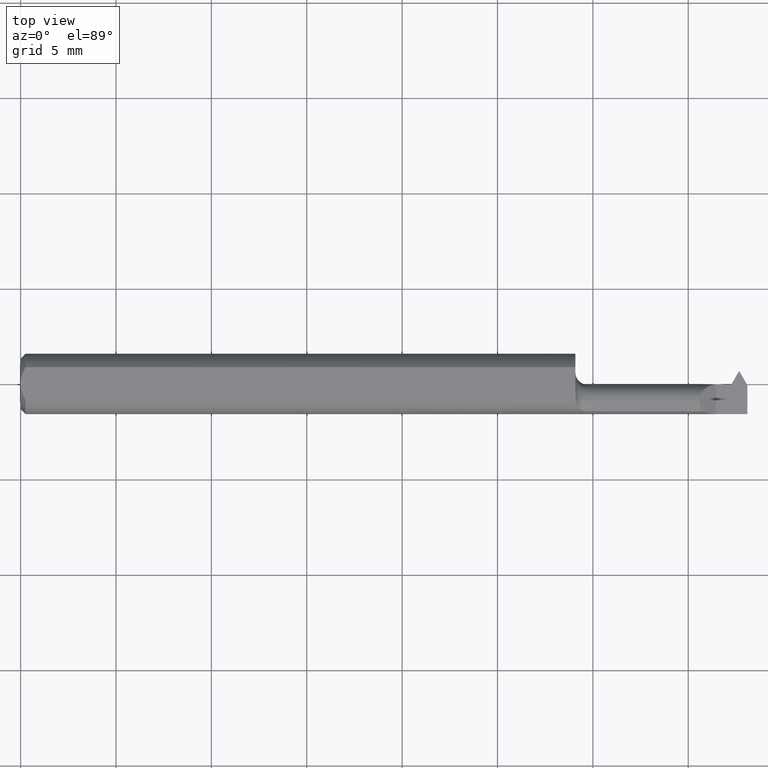
[diagram: clean part render]
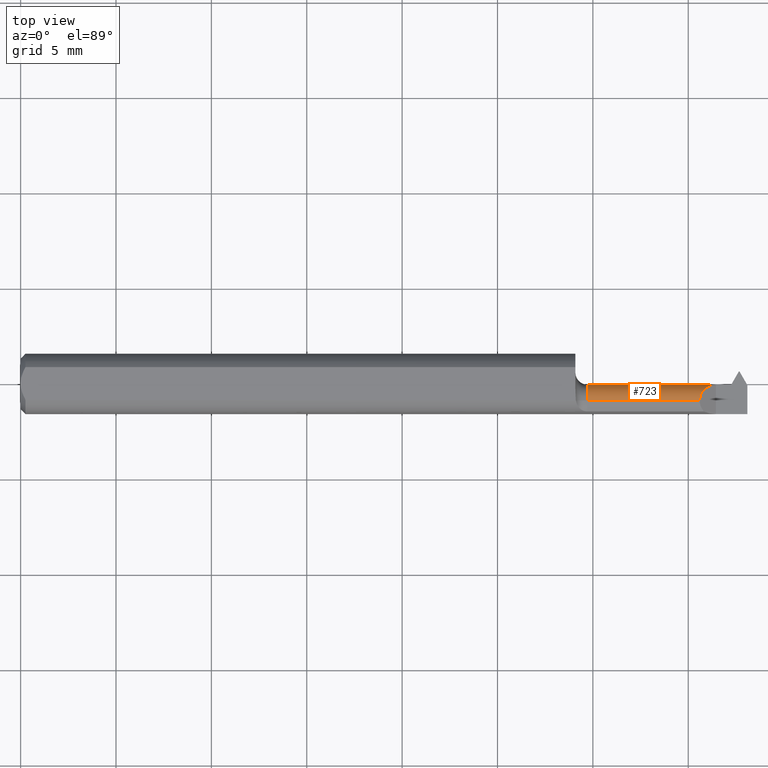
[diagram: same view with one face highlighted and labeled with its STEP entity id]
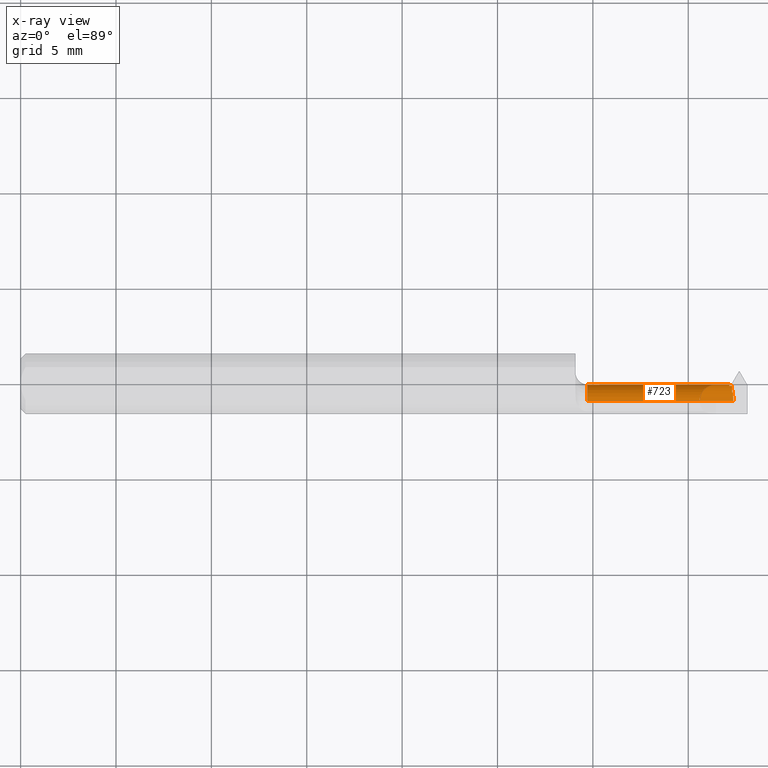
[diagram: x-ray of the same camera — body ghosted, the highlighted face saturated]
A machine part, top view. The second image highlights one B-rep face of the part: STEP entity #723.
The next image is the same camera in x-ray: the body ghosted, the highlighted face saturated — about 0% of this face is hidden behind the body in this view.
In plain terms, the highlighted cylindrical surface (edge-blend (fillet) strip) has radius 0.8509 mm, axis along (-1, -0, -0).
Its self-contained STEP definition (entity closure, byte-faithful):
#3 = AXIS2_PLACEMENT_3D ( 'NONE', #817, #128, #675 ) ;
#10 = CARTESIAN_POINT ( 'NONE',  ( 1.170000000000000151, -0.03485000000000003373, -0.03349999999999998812 ) ) ;
#61 = CARTESIAN_POINT ( 'NONE',  ( 1.464661542731879873, -0.001349999999999978604, 0.000000000000000000 ) ) ;
#78 = ORIENTED_EDGE ( 'NONE', *, *, #904, .T. ) ;
#80 = CARTESIAN_POINT ( 'NONE',  ( 1.469375214730118451, -0.01074846833720541524, -0.02326727683909952243 ) ) ;
#82 = CARTESIAN_POINT ( 'NONE',  ( 1.145000000000000240, -0.001350000000000033031, 4.347496136973102887E-17 ) ) ;
#87 = VERTEX_POINT ( 'NONE', #80 ) ;
#103 = CARTESIAN_POINT ( 'NONE',  ( 1.170000000000000151, -0.03485000000000003373, 0.03349999999999998812 ) ) ;
#111 = EDGE_CURVE ( 'NONE', #495, #411, #867, .T. ) ;
#119 = CARTESIAN_POINT ( 'NONE',  ( 1.468475892124523341, -0.005891887582196262720, -0.01685302363880395587 ) ) ;
#122 = CARTESIAN_POINT ( 'NONE',  ( 1.468594620871771950, -0.006192510509995339391, -0.01735929078915715226 ) ) ;
#128 = DIRECTION ( 'NONE',  ( -1.000000000000000000, -0.000000000000000000, -0.000000000000000000 ) ) ;
#131 = EDGE_CURVE ( 'NONE', #692, #495, #222, .T. ) ;
#134 = CARTESIAN_POINT ( 'NONE',  ( 1.469076601151433348, -0.01563932465019393994, -0.02764091926197534757 ) ) ;
#140 = CARTESIAN_POINT ( 'NONE',  ( 1.469375214730118451, -0.01074846833720541524, -0.02326727683909952243 ) ) ;
#141 = CARTESIAN_POINT ( 'NONE',  ( 1.463822938628645431, -0.001350000000000028044, -0.004314244107103855363 ) ) ;
#151 = DIRECTION ( 'NONE',  ( -1.000000000000000000, -0.000000000000000000, -0.000000000000000000 ) ) ;
#158 = ORIENTED_EDGE ( 'NONE', *, *, #447, .T. ) ;
#160 = FACE_OUTER_BOUND ( 'NONE', #603, .T. ) ;
#172 = ORIENTED_EDGE ( 'NONE', *, *, #371, .T. ) ;
#195 = VECTOR ( 'NONE', #781, 39.37007874015748143 ) ;
#197 = CARTESIAN_POINT ( 'NONE',  ( 1.415376154339498704, -0.001350000000000043440, 0.01962384566050133158 ) ) ;
#206 = LINE ( 'NONE', #82, #407 ) ;
#207 =( BOUNDED_CURVE ( )  B_SPLINE_CURVE ( 3, ( #359, #503, #436, #285 ),
 .UNSPECIFIED., .F., .F. ) 
 B_SPLINE_CURVE_WITH_KNOTS ( ( 4, 4 ),
 ( 4.342163871307964662, 4.520402762665540308 ),
 .UNSPECIFIED. ) 
 CURVE ( )  GEOMETRIC_REPRESENTATION_ITEM ( )  RATIONAL_B_SPLINE_CURVE ( ( 1.000000000000000000, 0.9973543265518616252, 0.9973543265518616252, 1.000000000000000000 ) ) 
 REPRESENTATION_ITEM ( '' )  );
#217 = EDGE_CURVE ( 'NONE', #671, #336, #683, .T. ) ;
#222 = LINE ( 'NONE', #632, #259 ) ;
#245 = VECTOR ( 'NONE', #854, 39.37007874015748143 ) ;
#259 = VECTOR ( 'NONE', #698, 39.37007874015748143 ) ;
#268 = CARTESIAN_POINT ( 'NONE',  ( 1.468344925588967786, -0.005604713232305744836, -0.01633900859523984908 ) ) ;
#285 = CARTESIAN_POINT ( 'NONE',  ( 1.468069896840982214, -0.003789340871974184680, -0.01254932087944042769 ) ) ;
#290 = CARTESIAN_POINT ( 'NONE',  ( 1.469375214730118451, -0.01074846833720541524, -0.02326727683909952243 ) ) ;
#293 = CARTESIAN_POINT ( 'NONE',  ( 1.462222201859867177, -0.003789340872012434899, -0.01254932087943251388 ) ) ;
#298 = CARTESIAN_POINT ( 'NONE',  ( 1.462222201859867177, -0.003789340872012434899, -0.01254932087943251388 ) ) ;
#303 = DIRECTION ( 'NONE',  ( 0.000000000000000000, 0.000000000000000000, 1.000000000000000000 ) ) ;
#306 = CIRCLE ( 'NONE', #3, 0.03349999999999998812 ) ;
#309 = ORIENTED_EDGE ( 'NONE', *, *, #786, .F. ) ;
#335 = EDGE_CURVE ( 'NONE', #828, #671, #431, .T. ) ;
#336 = VERTEX_POINT ( 'NONE', #341 ) ;
#341 = CARTESIAN_POINT ( 'NONE',  ( 1.468344925588967786, -0.01851099140476010138, -0.02924528676769424032 ) ) ;
#355 = CARTESIAN_POINT ( 'NONE',  ( 1.470794662288163357, -0.02563342286623731051, -0.03350000000000000894 ) ) ;
#357 = ORIENTED_EDGE ( 'NONE', *, *, #217, .T. ) ;
#359 = CARTESIAN_POINT ( 'NONE',  ( 1.468701029330982122, -0.006506373125172337096, -0.01785745826204101702 ) ) ;
#371 = EDGE_CURVE ( 'NONE', #761, #742, #492, .T. ) ;
#375 = CARTESIAN_POINT ( 'NONE',  ( 1.145000000000000240, -0.03485000000000003373, 0.000000000000000000 ) ) ;
#388 = CARTESIAN_POINT ( 'NONE',  ( 1.468344925588967786, -0.005604713232305744836, -0.01633900859523984908 ) ) ;
#397 = CARTESIAN_POINT ( 'NONE',  ( 1.435000000000000053, -0.001350000000000033031, 4.347496136973102887E-17 ) ) ;
#407 = VECTOR ( 'NONE', #623, 39.37007874015748143 ) ;
#411 = VERTEX_POINT ( 'NONE', #61 ) ;
#431 =( BOUNDED_CURVE ( )  B_SPLINE_CURVE ( 3, ( #607, #122, #119, #268 ),
 .UNSPECIFIED., .F., .F. ) 
 B_SPLINE_CURVE_WITH_KNOTS ( ( 4, 4 ),
 ( 3.364779490191137867, 3.417501371238728325 ),
 .UNSPECIFIED. ) 
 CURVE ( )  GEOMETRIC_REPRESENTATION_ITEM ( )  RATIONAL_B_SPLINE_CURVE ( ( 1.000000000000000000, 0.9997683803513917056, 0.9997683803513917056, 1.000000000000000000 ) ) 
 REPRESENTATION_ITEM ( '' )  );
#436 = CARTESIAN_POINT ( 'NONE',  ( 1.468285416211164485, -0.004535921870353929602, -0.01439717369343915948 ) ) ;
#437 = DIRECTION ( 'NONE',  ( 0.000000000000000000, 8.919279830060556988E-16, -1.000000000000000000 ) ) ;
#447 = EDGE_CURVE ( 'NONE', #336, #87, #873, .T. ) ;
#449 = CYLINDRICAL_SURFACE ( 'NONE', #517, 0.03350000000000000894 ) ;
#466 =( BOUNDED_CURVE ( )  B_SPLINE_CURVE ( 3, ( #710, #355, #772, #290 ),
 .UNSPECIFIED., .F., .T. ) 
 B_SPLINE_CURVE_WITH_KNOTS ( ( 4, 4 ),
 ( 3.333578871309169855, 4.136587116319170754 ),
 .UNSPECIFIED. ) 
 CURVE ( )  GEOMETRIC_REPRESENTATION_ITEM ( )  RATIONAL_B_SPLINE_CURVE ( ( 1.000000000000000000, 0.9469828129562340990, 0.9469828129562340990, 1.000000000000000000 ) ) 
 REPRESENTATION_ITEM ( '' )  );
#474 = EDGE_CURVE ( 'NONE', #642, #87, #466, .T. ) ;
#485 = ORIENTED_EDGE ( 'NONE', *, *, #131, .F. ) ;
#492 =( BOUNDED_CURVE ( )  B_SPLINE_CURVE ( 3, ( #901, #891, #197, #690 ),
 .UNSPECIFIED., .F., .F. ) 
 B_SPLINE_CURVE_WITH_KNOTS ( ( 4, 4 ),
 ( 0.000000000000000000, 1.570796326794895892 ),
 .UNSPECIFIED. ) 
 CURVE ( )  GEOMETRIC_REPRESENTATION_ITEM ( )  RATIONAL_B_SPLINE_CURVE ( ( 1.000000000000000000, 0.8047378541243652705, 0.8047378541243652705, 1.000000000000000000 ) ) 
 REPRESENTATION_ITEM ( '' )  );
#495 = VERTEX_POINT ( 'NONE', #293 ) ;
#497 = CARTESIAN_POINT ( 'NONE',  ( 1.469422509841785462, -0.01303313956983399684, -0.02563386560808460918 ) ) ;
#503 = CARTESIAN_POINT ( 'NONE',  ( 1.468496351774450703, -0.005444001770956546395, -0.01617124643813321050 ) ) ;
#506 = LINE ( 'NONE', #776, #195 ) ;
#517 = AXIS2_PLACEMENT_3D ( 'NONE', #375, #651, #303 ) ;
#521 = CARTESIAN_POINT ( 'NONE',  ( 1.468069896840982214, -0.003789340871974184680, -0.01254932087944042769 ) ) ;
#523 = VERTEX_POINT ( 'NONE', #10 ) ;
#534 = ORIENTED_EDGE ( 'NONE', *, *, #560, .T. ) ;
#538 = EDGE_CURVE ( 'NONE', #828, #692, #207, .T. ) ;
#560 = EDGE_CURVE ( 'NONE', #642, #523, #506, .T. ) ;
#566 = EDGE_CURVE ( 'NONE', #761, #649, #705, .T. ) ;
#583 = ORIENTED_EDGE ( 'NONE', *, *, #474, .F. ) ;
#603 = EDGE_LOOP ( 'NONE', ( #583, #534, #309, #662, #172, #78, #734, #485, #752, #687, #357, #158 ) ) ;
#607 = CARTESIAN_POINT ( 'NONE',  ( 1.468701029330982122, -0.006506373125172337096, -0.01785745826204101702 ) ) ;
#623 = DIRECTION ( 'NONE',  ( 1.000000000000000000, 0.000000000000000000, 0.000000000000000000 ) ) ;
#630 = CARTESIAN_POINT ( 'NONE',  ( 1.145000000000000240, -0.03485000000000003373, 0.03350000000000000894 ) ) ;
#632 = CARTESIAN_POINT ( 'NONE',  ( 1.145000000000001128, -0.003789340871995800636, -0.01254932087939134369 ) ) ;
#642 = VERTEX_POINT ( 'NONE', #874 ) ;
#644 = CARTESIAN_POINT ( 'NONE',  ( 1.468344925588967786, -0.01851099140476010138, -0.02924528676769424032 ) ) ;
#649 = VERTEX_POINT ( 'NONE', #103 ) ;
#651 = DIRECTION ( 'NONE',  ( -1.000000000000000000, -0.000000000000000000, -0.000000000000000000 ) ) ;
#662 = ORIENTED_EDGE ( 'NONE', *, *, #566, .F. ) ;
#671 = VERTEX_POINT ( 'NONE', #388 ) ;
#675 = DIRECTION ( 'NONE',  ( 0.000000000000000000, 0.000000000000000000, 1.000000000000000000 ) ) ;
#680 = CARTESIAN_POINT ( 'NONE',  ( 1.401499999999999746, -0.03485000000000003373, 0.03350000000000000894 ) ) ;
#683 = CIRCLE ( 'NONE', #863, 0.03350000000000000894 ) ;
#687 = ORIENTED_EDGE ( 'NONE', *, *, #335, .T. ) ;
#690 = CARTESIAN_POINT ( 'NONE',  ( 1.435000000000000053, -0.001350000000000033031, 4.347496136973102887E-17 ) ) ;
#692 = VERTEX_POINT ( 'NONE', #521 ) ;
#698 = DIRECTION ( 'NONE',  ( -1.000000000000000000, -0.000000000000000000, -0.000000000000000000 ) ) ;
#703 = CARTESIAN_POINT ( 'NONE',  ( 1.462999742044759799, -0.002173196583885655172, -0.008549223398665909204 ) ) ;
#705 = LINE ( 'NONE', #630, #245 ) ;
#710 = CARTESIAN_POINT ( 'NONE',  ( 1.470988396680375176, -0.03485000000000003373, -0.03350000000000003669 ) ) ;
#723 = ADVANCED_FACE ( 'NONE', ( #160 ), #449, .T. ) ;
#734 = ORIENTED_EDGE ( 'NONE', *, *, #111, .F. ) ;
#742 = VERTEX_POINT ( 'NONE', #397 ) ;
#752 = ORIENTED_EDGE ( 'NONE', *, *, #538, .F. ) ;
#761 = VERTEX_POINT ( 'NONE', #680 ) ;
#772 = CARTESIAN_POINT ( 'NONE',  ( 1.470226830106422300, -0.01714980122318057743, -0.02989813133497940673 ) ) ;
#776 = CARTESIAN_POINT ( 'NONE',  ( 1.145000000000000240, -0.03485000000000003373, -0.03350000000000000894 ) ) ;
#778 = CARTESIAN_POINT ( 'NONE',  ( 1.468344925588967786, -0.03485000000000003373, 0.000000000000000000 ) ) ;
#781 = DIRECTION ( 'NONE',  ( -1.000000000000000000, -0.000000000000000000, -0.000000000000000000 ) ) ;
#786 = EDGE_CURVE ( 'NONE', #649, #523, #306, .T. ) ;
#817 = CARTESIAN_POINT ( 'NONE',  ( 1.170000000000000151, -0.03485000000000003373, 0.000000000000000000 ) ) ;
#828 = VERTEX_POINT ( 'NONE', #842 ) ;
#837 = CARTESIAN_POINT ( 'NONE',  ( 1.464661542731879873, -0.001349999999999978604, 0.000000000000000000 ) ) ;
#842 = CARTESIAN_POINT ( 'NONE',  ( 1.468701029330982122, -0.006506373125172337096, -0.01785745826204101702 ) ) ;
#854 = DIRECTION ( 'NONE',  ( -1.000000000000000000, -0.000000000000000000, -0.000000000000000000 ) ) ;
#863 = AXIS2_PLACEMENT_3D ( 'NONE', #778, #151, #437 ) ;
#867 =( BOUNDED_CURVE ( )  B_SPLINE_CURVE ( 3, ( #298, #703, #141, #837 ),
 .UNSPECIFIED., .F., .F. ) 
 B_SPLINE_CURVE_WITH_KNOTS ( ( 4, 4 ),
 ( 1.186823891356160621, 1.570796326794896780 ),
 .UNSPECIFIED. ) 
 CURVE ( )  GEOMETRIC_REPRESENTATION_ITEM ( )  RATIONAL_B_SPLINE_CURVE ( ( 1.000000000000000000, 0.9877514556317770200, 0.9877514556317770200, 1.000000000000000000 ) ) 
 REPRESENTATION_ITEM ( '' )  );
#873 =( BOUNDED_CURVE ( )  B_SPLINE_CURVE ( 3, ( #644, #134, #497, #140 ),
 .UNSPECIFIED., .F., .F. ) 
 B_SPLINE_CURVE_WITH_KNOTS ( ( 4, 4 ),
 ( 2.865683935940858795, 3.159202735202343515 ),
 .UNSPECIFIED. ) 
 CURVE ( )  GEOMETRIC_REPRESENTATION_ITEM ( )  RATIONAL_B_SPLINE_CURVE ( ( 1.000000000000000000, 0.9928334363834024900, 0.9928334363834024900, 1.000000000000000000 ) ) 
 REPRESENTATION_ITEM ( '' )  );
#874 = CARTESIAN_POINT ( 'NONE',  ( 1.470988396680375176, -0.03485000000000003373, -0.03350000000000003669 ) ) ;
#891 = CARTESIAN_POINT ( 'NONE',  ( 1.401499999999999746, -0.01522615433949873164, 0.03350000000000000894 ) ) ;
#901 = CARTESIAN_POINT ( 'NONE',  ( 1.401499999999999746, -0.03485000000000003373, 0.03350000000000000894 ) ) ;
#904 = EDGE_CURVE ( 'NONE', #742, #411, #206, .T. ) ;